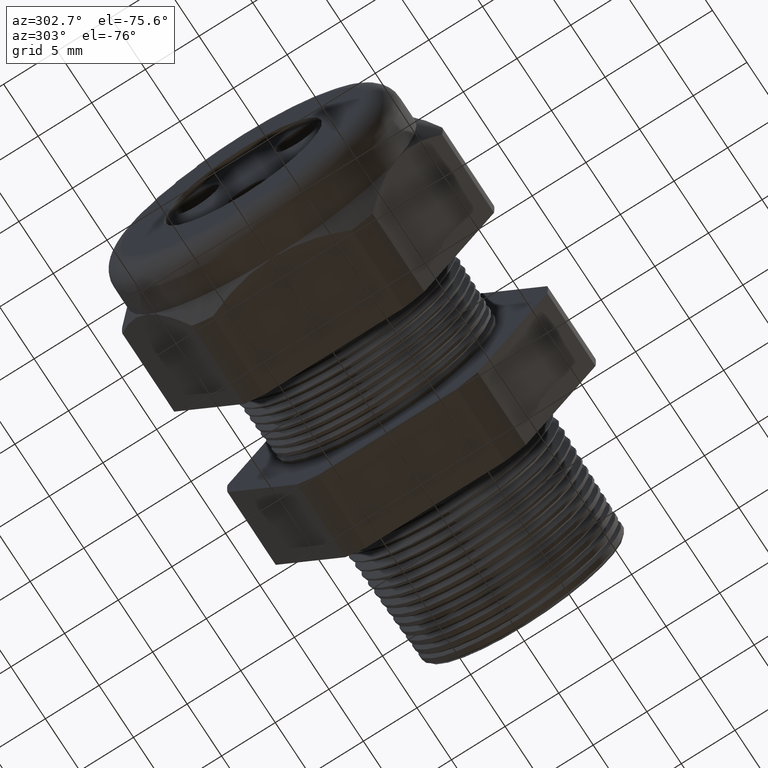
[diagram: clean part render]
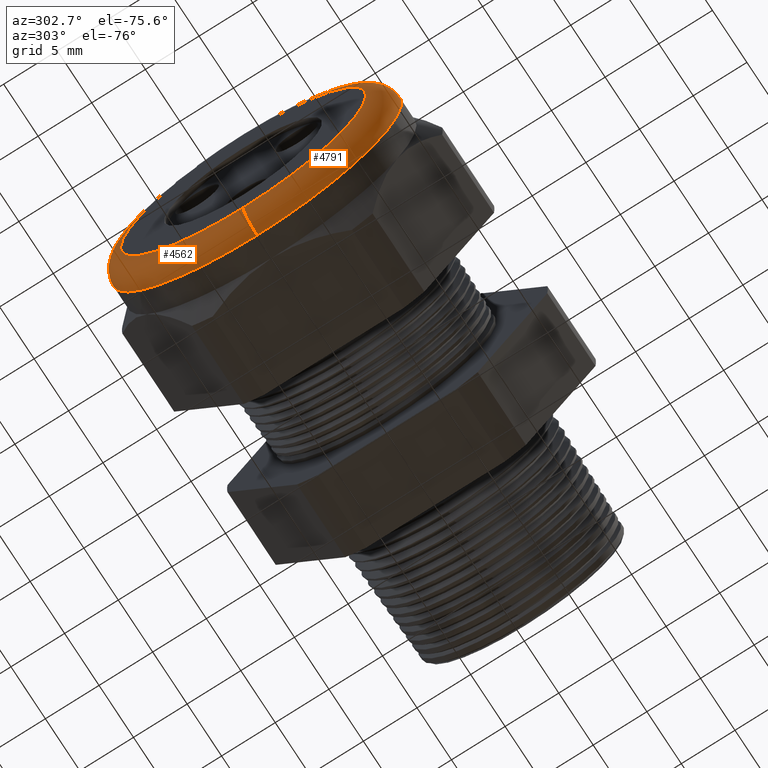
[diagram: same view with one multi-face feature highlighted, each face labeled with its STEP entity id]
A machine part, auxiliary view. The highlighted faces form ONE feature: a constant-radius fillet chain: 2 tangent blend faces with common blend radius 2.032 mm. The faces share edges in the B-rep.
Their STEP definitions:
[1] entity #4791 (Torus):
#1856 = DIRECTION ( 'NONE',  ( 0.0000000000000000000, 0.0000000000000000000, 1.000000000000000000 ) ) ;
#1857 = DIRECTION ( 'NONE',  ( 1.000000000000000000, 0.0000000000000000000, 0.0000000000000000000 ) ) ;
#1858 = CARTESIAN_POINT ( 'NONE',  ( -1.330000000000000100, 0.0000000000000000000, 0.0000000000000000000 ) ) ;
#1859 = AXIS2_PLACEMENT_3D ( 'NONE', #1858, #1857, #1856 ) ;
#1860 = CIRCLE ( 'NONE', #1859, 0.5300000000000001400 ) ;
#1948 = DIRECTION ( 'NONE',  ( -1.000000000000000000, 0.0000000000000000000, 0.0000000000000000000 ) ) ;
#1949 = CARTESIAN_POINT ( 'NONE',  ( -1.409999999999999900, 0.0000000000000000000, 0.0000000000000000000 ) ) ;
#1950 = AXIS2_PLACEMENT_3D ( 'NONE', #1949, #1948, #2012 ) ;
#1951 = CIRCLE ( 'NONE', #1950, 0.4500000000000001200 ) ;
#2012 = DIRECTION ( 'NONE',  ( 0.0000000000000000000, 0.0000000000000000000, 1.000000000000000000 ) ) ;
#3010 = CARTESIAN_POINT ( 'NONE',  ( -1.409999999999999900, 6.000769315822032200E-017, -0.4500000000000001200 ) ) ;
#3124 = CARTESIAN_POINT ( 'NONE',  ( -1.330000000000000100, 0.0000000000000000000, -0.5300000000000001400 ) ) ;
#3169 = CARTESIAN_POINT ( 'NONE',  ( -1.330000000000000100, 6.490628035480972400E-017, 0.5300000000000001400 ) ) ;
#3215 = DIRECTION ( 'NONE',  ( 0.0000000000000000000, -1.224646799147353900E-016, 1.000000000000000000 ) ) ;
#3216 = DIRECTION ( 'NONE',  ( 0.0000000000000000000, 1.000000000000000000, 1.224646799147353200E-016 ) ) ;
#3217 = CARTESIAN_POINT ( 'NONE',  ( -1.330000000000000100, 5.510910596163090800E-017, -0.4500000000000001200 ) ) ;
#3218 = AXIS2_PLACEMENT_3D ( 'NONE', #3217, #3216, #3215 ) ;
#3219 = CIRCLE ( 'NONE', #3218, 0.07999999999999996000 ) ;
#3230 = DIRECTION ( 'NONE',  ( 0.0000000000000000000, 0.0000000000000000000, -1.000000000000000000 ) ) ;
#3231 = DIRECTION ( 'NONE',  ( 0.0000000000000000000, -1.000000000000000000, 0.0000000000000000000 ) ) ;
#3232 = CARTESIAN_POINT ( 'NONE',  ( -1.330000000000000100, 0.0000000000000000000, 0.4500000000000001200 ) ) ;
#3233 = AXIS2_PLACEMENT_3D ( 'NONE', #3232, #3231, #3230 ) ;
#3234 = CIRCLE ( 'NONE', #3233, 0.07999999999999996000 ) ;
#3275 = CARTESIAN_POINT ( 'NONE',  ( -1.409999999999999900, 0.0000000000000000000, 0.4500000000000001200 ) ) ;
#3556 = DIRECTION ( 'NONE',  ( 0.0000000000000000000, 0.0000000000000000000, 1.000000000000000000 ) ) ;
#3557 = DIRECTION ( 'NONE',  ( -1.000000000000000000, 0.0000000000000000000, 0.0000000000000000000 ) ) ;
#3558 = AXIS2_PLACEMENT_3D ( 'NONE', #3565, #3557, #3556 ) ;
#3559 = TOROIDAL_SURFACE ( 'NONE', #3558, 0.4500000000000001200, 0.08000000000000000200 ) ;
#3560 = FACE_OUTER_BOUND ( 'NONE', #4799, .T. ) ;
#3565 = CARTESIAN_POINT ( 'NONE',  ( -1.330000000000000100, 0.0000000000000000000, 0.0000000000000000000 ) ) ;
#3891 = EDGE_CURVE ( 'NONE', #4576, #4563, #1860, .T. ) ;
#3941 = EDGE_CURVE ( 'NONE', #4494, #4618, #1951, .T. ) ;
#4494 = VERTEX_POINT ( 'NONE', #3010 ) ;
#4563 = VERTEX_POINT ( 'NONE', #3124 ) ;
#4576 = VERTEX_POINT ( 'NONE', #3169 ) ;
#4607 = EDGE_CURVE ( 'NONE', #4576, #4618, #3234, .T. ) ;
#4615 = EDGE_CURVE ( 'NONE', #4563, #4494, #3219, .T. ) ;
#4618 = VERTEX_POINT ( 'NONE', #3275 ) ;
#4791 = ADVANCED_FACE ( 'NONE', ( #3560 ), #3559, .T. ) ;
#4792 = ORIENTED_EDGE ( 'NONE', *, *, #4615, .F. ) ;
#4799 = EDGE_LOOP ( 'NONE', ( #4792, #4835, #4836, #4842 ) ) ;
#4835 = ORIENTED_EDGE ( 'NONE', *, *, #3891, .F. ) ;
#4836 = ORIENTED_EDGE ( 'NONE', *, *, #4607, .T. ) ;
#4842 = ORIENTED_EDGE ( 'NONE', *, *, #3941, .F. ) ;
[2] entity #4562 (Torus):
#3010 = CARTESIAN_POINT ( 'NONE',  ( -1.409999999999999900, 6.000769315822032200E-017, -0.4500000000000001200 ) ) ;
#3124 = CARTESIAN_POINT ( 'NONE',  ( -1.330000000000000100, 0.0000000000000000000, -0.5300000000000001400 ) ) ;
#3125 = DIRECTION ( 'NONE',  ( 0.0000000000000000000, 0.0000000000000000000, 1.000000000000000000 ) ) ;
#3126 = DIRECTION ( 'NONE',  ( -1.000000000000000000, 0.0000000000000000000, 0.0000000000000000000 ) ) ;
#3127 = CARTESIAN_POINT ( 'NONE',  ( -1.330000000000000100, 0.0000000000000000000, 0.0000000000000000000 ) ) ;
#3128 = AXIS2_PLACEMENT_3D ( 'NONE', #3127, #3126, #3125 ) ;
#3129 = TOROIDAL_SURFACE ( 'NONE', #3128, 0.4500000000000001200, 0.08000000000000000200 ) ;
#3130 = FACE_OUTER_BOUND ( 'NONE', #4573, .T. ) ;
#3169 = CARTESIAN_POINT ( 'NONE',  ( -1.330000000000000100, 6.490628035480972400E-017, 0.5300000000000001400 ) ) ;
#3170 = DIRECTION ( 'NONE',  ( 0.0000000000000000000, 0.0000000000000000000, 1.000000000000000000 ) ) ;
#3171 = DIRECTION ( 'NONE',  ( 1.000000000000000000, 0.0000000000000000000, 0.0000000000000000000 ) ) ;
#3172 = CARTESIAN_POINT ( 'NONE',  ( -1.330000000000000100, 0.0000000000000000000, 0.0000000000000000000 ) ) ;
#3173 = AXIS2_PLACEMENT_3D ( 'NONE', #3172, #3171, #3170 ) ;
#3174 = CIRCLE ( 'NONE', #3173, 0.5300000000000001400 ) ;
#3213 = AXIS2_PLACEMENT_3D ( 'NONE', #3279, #3278, #3277 ) ;
#3214 = CIRCLE ( 'NONE', #3213, 0.4500000000000001200 ) ;
#3215 = DIRECTION ( 'NONE',  ( 0.0000000000000000000, -1.224646799147353900E-016, 1.000000000000000000 ) ) ;
#3216 = DIRECTION ( 'NONE',  ( 0.0000000000000000000, 1.000000000000000000, 1.224646799147353200E-016 ) ) ;
#3217 = CARTESIAN_POINT ( 'NONE',  ( -1.330000000000000100, 5.510910596163090800E-017, -0.4500000000000001200 ) ) ;
#3218 = AXIS2_PLACEMENT_3D ( 'NONE', #3217, #3216, #3215 ) ;
#3219 = CIRCLE ( 'NONE', #3218, 0.07999999999999996000 ) ;
#3230 = DIRECTION ( 'NONE',  ( 0.0000000000000000000, 0.0000000000000000000, -1.000000000000000000 ) ) ;
#3231 = DIRECTION ( 'NONE',  ( 0.0000000000000000000, -1.000000000000000000, 0.0000000000000000000 ) ) ;
#3232 = CARTESIAN_POINT ( 'NONE',  ( -1.330000000000000100, 0.0000000000000000000, 0.4500000000000001200 ) ) ;
#3233 = AXIS2_PLACEMENT_3D ( 'NONE', #3232, #3231, #3230 ) ;
#3234 = CIRCLE ( 'NONE', #3233, 0.07999999999999996000 ) ;
#3275 = CARTESIAN_POINT ( 'NONE',  ( -1.409999999999999900, 0.0000000000000000000, 0.4500000000000001200 ) ) ;
#3277 = DIRECTION ( 'NONE',  ( 0.0000000000000000000, 0.0000000000000000000, 1.000000000000000000 ) ) ;
#3278 = DIRECTION ( 'NONE',  ( -1.000000000000000000, 0.0000000000000000000, 0.0000000000000000000 ) ) ;
#3279 = CARTESIAN_POINT ( 'NONE',  ( -1.409999999999999900, 0.0000000000000000000, 0.0000000000000000000 ) ) ;
#4494 = VERTEX_POINT ( 'NONE', #3010 ) ;
#4562 = ADVANCED_FACE ( 'NONE', ( #3130 ), #3129, .T. ) ;
#4563 = VERTEX_POINT ( 'NONE', #3124 ) ;
#4573 = EDGE_LOOP ( 'NONE', ( #4574, #4614, #4616, #4606 ) ) ;
#4574 = ORIENTED_EDGE ( 'NONE', *, *, #4575, .F. ) ;
#4575 = EDGE_CURVE ( 'NONE', #4563, #4576, #3174, .T. ) ;
#4576 = VERTEX_POINT ( 'NONE', #3169 ) ;
#4606 = ORIENTED_EDGE ( 'NONE', *, *, #4607, .F. ) ;
#4607 = EDGE_CURVE ( 'NONE', #4576, #4618, #3234, .T. ) ;
#4614 = ORIENTED_EDGE ( 'NONE', *, *, #4615, .T. ) ;
#4615 = EDGE_CURVE ( 'NONE', #4563, #4494, #3219, .T. ) ;
#4616 = ORIENTED_EDGE ( 'NONE', *, *, #4617, .F. ) ;
#4617 = EDGE_CURVE ( 'NONE', #4618, #4494, #3214, .T. ) ;
#4618 = VERTEX_POINT ( 'NONE', #3275 ) ;